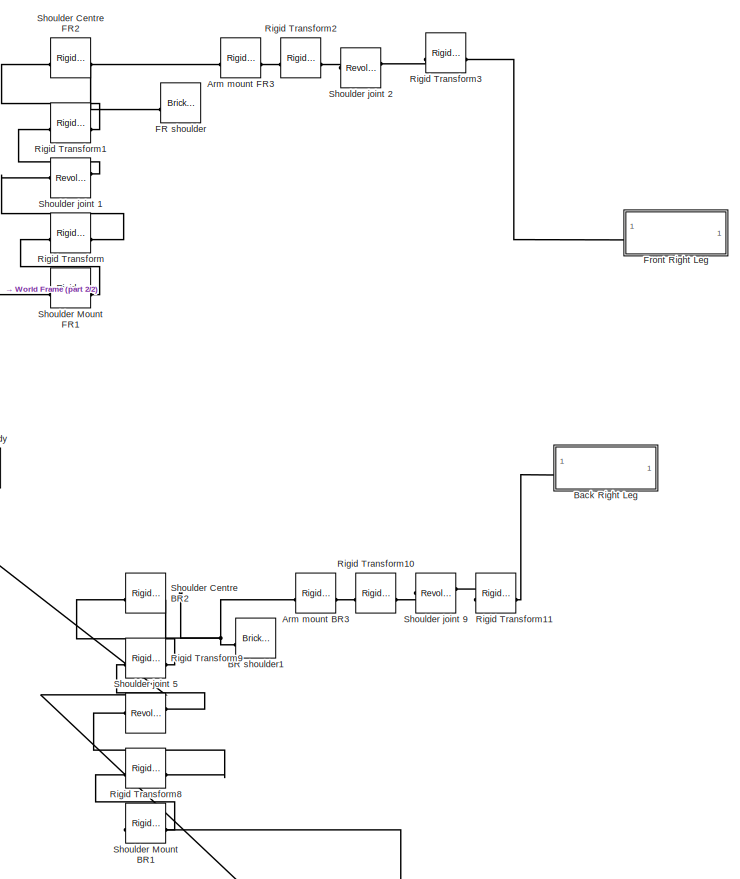
[diagram: root canvas - part 1/2, middle right region]
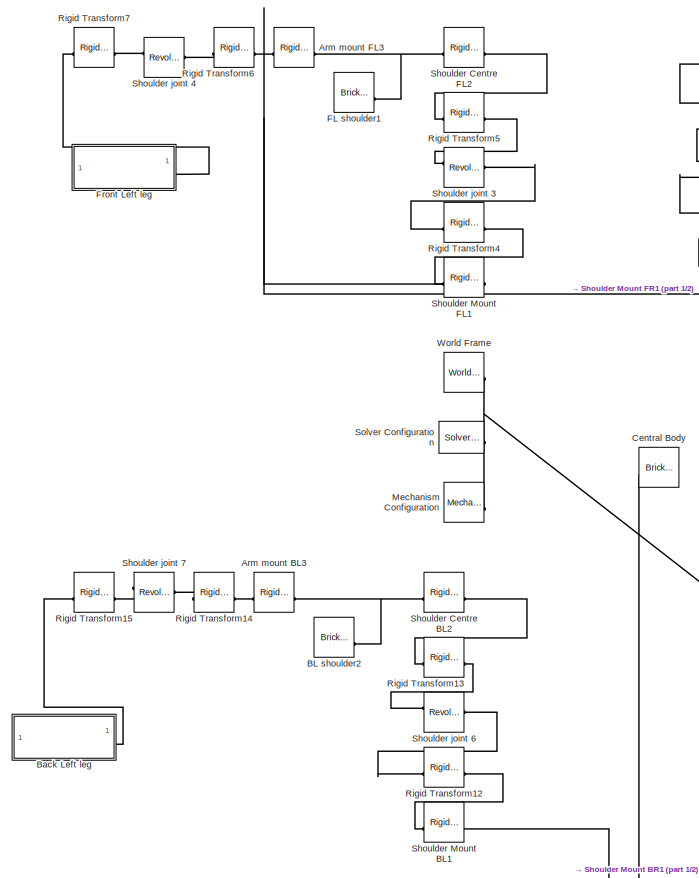
[diagram: root canvas - part 2/2, middle left region]
MODEL slx_f675138308cd
KIND model
CONFIG AbsTol = auto
CONFIG EnableMultiTasking = off
CONFIG FixedStep = auto
CONFIG MaxStep = auto
CONFIG MinStep = auto
CONFIG RelTol = 1e-3
CONFIG SampleTimeConstraint = Unconstrained
CONFIG SolverName = VariableStepAuto
CONFIG StartTime = 0.0
CONFIG StopTime = 10.0
BLOCK [Reference] Arm mount BL3  REF=sm_lib/Frames and
Transforms/Rigid
Transform
  SourceBlock = sm_lib/Frames and\nTransforms/Rigid\nTransform
  SourceType = Rigid\nTransform
BLOCK [Reference] Arm mount BR3  REF=sm_lib/Frames and
Transforms/Rigid
Transform
  SourceBlock = sm_lib/Frames and\nTransforms/Rigid\nTransform
  SourceType = Rigid\nTransform
BLOCK [Reference] Arm mount FL3  REF=sm_lib/Frames and
Transforms/Rigid
Transform
  SourceBlock = sm_lib/Frames and\nTransforms/Rigid\nTransform
  SourceType = Rigid\nTransform
BLOCK [Reference] Arm mount FR3  REF=sm_lib/Frames and
Transforms/Rigid
Transform
  SourceBlock = sm_lib/Frames and\nTransforms/Rigid\nTransform
  SourceType = Rigid\nTransform
BLOCK [Reference] BL shoulder2  REF=sm_lib/Body Elements/Brick Solid
  SourceBlock = sm_lib/Body Elements/Brick Solid
  SourceType = Brick Solid
BLOCK [Reference] BR shoulder1  REF=sm_lib/Body Elements/Brick Solid
  SourceBlock = sm_lib/Body Elements/Brick Solid
  SourceType = Brick Solid
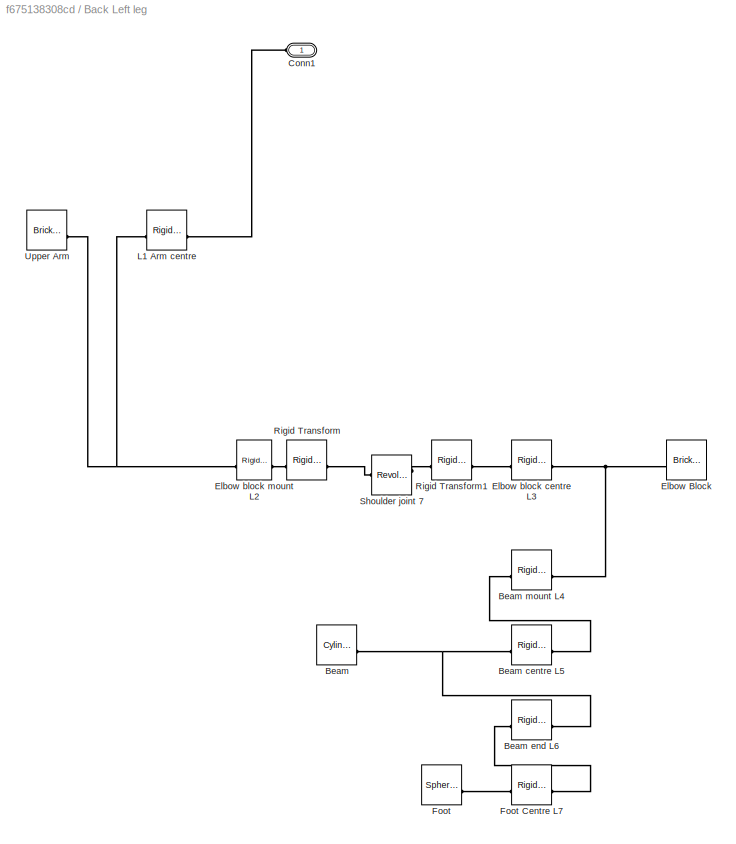
BLOCK [SubSystem] Back Left leg
BLOCK [Reference] Back Left leg/Beam  REF=sm_lib/Body Elements/Cylindrical Solid
  SourceBlock = sm_lib/Body Elements/Cylindrical Solid
  SourceType = Cylindrical Solid
BLOCK [Reference] Back Left leg/Beam centre L5  REF=sm_lib/Frames and
Transforms/Rigid
Transform
  SourceBlock = sm_lib/Frames and\nTransforms/Rigid\nTransform
  SourceType = Rigid\nTransform
BLOCK [Reference] Back Left leg/Beam end L6  REF=sm_lib/Frames and
Transforms/Rigid
Transform
  SourceBlock = sm_lib/Frames and\nTransforms/Rigid\nTransform
  SourceType = Rigid\nTransform
BLOCK [Reference] Back Left leg/Beam mount L4  REF=sm_lib/Frames and
Transforms/Rigid
Transform
  SourceBlock = sm_lib/Frames and\nTransforms/Rigid\nTransform
  SourceType = Rigid\nTransform
BLOCK [PMIOPort] Back Left leg/Conn1
  Side = Left
BLOCK [Reference] Back Left leg/Elbow Block  REF=sm_lib/Body Elements/Brick Solid
  SourceBlock = sm_lib/Body Elements/Brick Solid
  SourceType = Brick Solid
BLOCK [Reference] Back Left leg/Elbow block centre L3  REF=sm_lib/Frames and
Transforms/Rigid
Transform
  SourceBlock = sm_lib/Frames and\nTransforms/Rigid\nTransform
  SourceType = Rigid\nTransform
BLOCK [Reference] Back Left leg/Elbow block mount L2  REF=sm_lib/Frames and
Transforms/Rigid
Transform
  SourceBlock = sm_lib/Frames and\nTransforms/Rigid\nTransform
  SourceType = Rigid\nTransform
BLOCK [Reference] Back Left leg/Foot  REF=sm_lib/Body Elements/Spherical Solid
  SourceBlock = sm_lib/Body Elements/Spherical Solid
  SourceType = Spherical Solid
BLOCK [Reference] Back Left leg/Foot Centre L7  REF=sm_lib/Frames and
Transforms/Rigid
Transform
  SourceBlock = sm_lib/Frames and\nTransforms/Rigid\nTransform
  SourceType = Rigid\nTransform
BLOCK [Reference] Back Left leg/L1 Arm centre  REF=sm_lib/Frames and
Transforms/Rigid
Transform
  SourceBlock = sm_lib/Frames and\nTransforms/Rigid\nTransform
  SourceType = Rigid\nTransform
BLOCK [Reference] Back Left leg/Rigid Transform  REF=sm_lib/Frames and
Transforms/Rigid
Transform
  SourceBlock = sm_lib/Frames and\nTransforms/Rigid\nTransform
  SourceType = Rigid\nTransform
BLOCK [Reference] Back Left leg/Rigid Transform1  REF=sm_lib/Frames and
Transforms/Rigid
Transform
  SourceBlock = sm_lib/Frames and\nTransforms/Rigid\nTransform
  SourceType = Rigid\nTransform
BLOCK [Reference] Back Left leg/Shoulder joint 7  REF=sm_lib/Joints/Revolute Joint
  SourceBlock = sm_lib/Joints/Revolute Joint
  SourceType = Revolute Joint
BLOCK [Reference] Back Left leg/Upper Arm  REF=sm_lib/Body Elements/Brick Solid
  SourceBlock = sm_lib/Body Elements/Brick Solid
  SourceType = Brick Solid
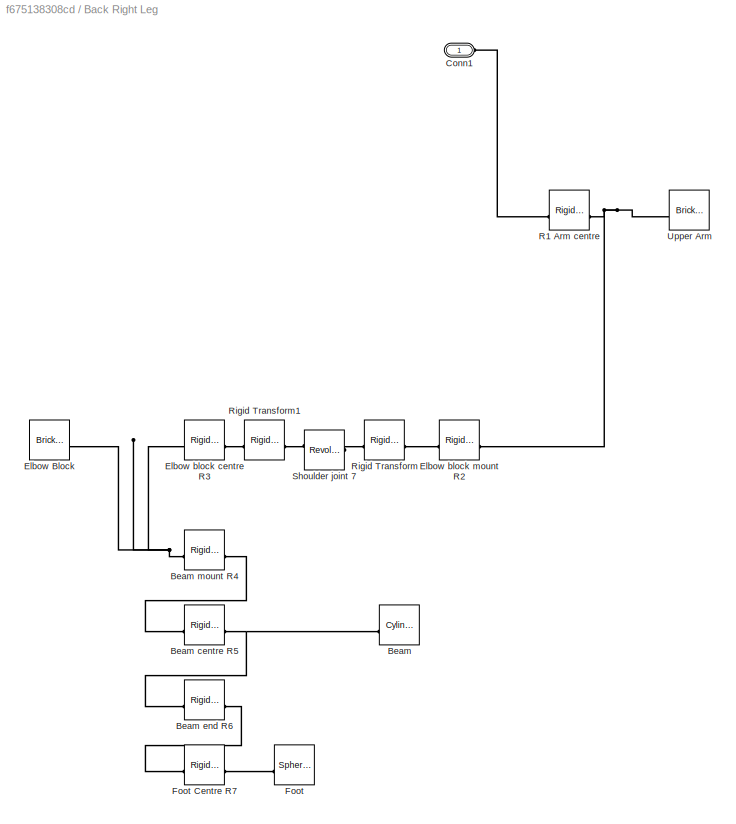
BLOCK [SubSystem] Back Right Leg
BLOCK [Reference] Back Right Leg/Beam  REF=sm_lib/Body Elements/Cylindrical Solid
  SourceBlock = sm_lib/Body Elements/Cylindrical Solid
  SourceType = Cylindrical Solid
BLOCK [Reference] Back Right Leg/Beam centre R5  REF=sm_lib/Frames and
Transforms/Rigid
Transform
  SourceBlock = sm_lib/Frames and\nTransforms/Rigid\nTransform
  SourceType = Rigid\nTransform
BLOCK [Reference] Back Right Leg/Beam end R6  REF=sm_lib/Frames and
Transforms/Rigid
Transform
  SourceBlock = sm_lib/Frames and\nTransforms/Rigid\nTransform
  SourceType = Rigid\nTransform
BLOCK [Reference] Back Right Leg/Beam mount R4  REF=sm_lib/Frames and
Transforms/Rigid
Transform
  SourceBlock = sm_lib/Frames and\nTransforms/Rigid\nTransform
  SourceType = Rigid\nTransform
BLOCK [PMIOPort] Back Right Leg/Conn1
  Side = Left
BLOCK [Reference] Back Right Leg/Elbow Block  REF=sm_lib/Body Elements/Brick Solid
  SourceBlock = sm_lib/Body Elements/Brick Solid
  SourceType = Brick Solid
BLOCK [Reference] Back Right Leg/Elbow block centre R3  REF=sm_lib/Frames and
Transforms/Rigid
Transform
  SourceBlock = sm_lib/Frames and\nTransforms/Rigid\nTransform
  SourceType = Rigid\nTransform
BLOCK [Reference] Back Right Leg/Elbow block mount R2  REF=sm_lib/Frames and
Transforms/Rigid
Transform
  SourceBlock = sm_lib/Frames and\nTransforms/Rigid\nTransform
  SourceType = Rigid\nTransform
BLOCK [Reference] Back Right Leg/Foot  REF=sm_lib/Body Elements/Spherical Solid
  SourceBlock = sm_lib/Body Elements/Spherical Solid
  SourceType = Spherical Solid
BLOCK [Reference] Back Right Leg/Foot Centre R7  REF=sm_lib/Frames and
Transforms/Rigid
Transform
  SourceBlock = sm_lib/Frames and\nTransforms/Rigid\nTransform
  SourceType = Rigid\nTransform
BLOCK [Reference] Back Right Leg/R1 Arm centre  REF=sm_lib/Frames and
Transforms/Rigid
Transform
  SourceBlock = sm_lib/Frames and\nTransforms/Rigid\nTransform
  SourceType = Rigid\nTransform
BLOCK [Reference] Back Right Leg/Rigid Transform  REF=sm_lib/Frames and
Transforms/Rigid
Transform
  SourceBlock = sm_lib/Frames and\nTransforms/Rigid\nTransform
  SourceType = Rigid\nTransform
BLOCK [Reference] Back Right Leg/Rigid Transform1  REF=sm_lib/Frames and
Transforms/Rigid
Transform
  SourceBlock = sm_lib/Frames and\nTransforms/Rigid\nTransform
  SourceType = Rigid\nTransform
BLOCK [Reference] Back Right Leg/Shoulder joint 7  REF=sm_lib/Joints/Revolute Joint
  SourceBlock = sm_lib/Joints/Revolute Joint
  SourceType = Revolute Joint
BLOCK [Reference] Back Right Leg/Upper Arm  REF=sm_lib/Body Elements/Brick Solid
  SourceBlock = sm_lib/Body Elements/Brick Solid
  SourceType = Brick Solid
BLOCK [Reference] Central Body  REF=sm_lib/Body Elements/Brick Solid
  SourceBlock = sm_lib/Body Elements/Brick Solid
  SourceType = Brick Solid
BLOCK [Reference] FL shoulder1  REF=sm_lib/Body Elements/Brick Solid
  SourceBlock = sm_lib/Body Elements/Brick Solid
  SourceType = Brick Solid
BLOCK [Reference] FR shoulder  REF=sm_lib/Body Elements/Brick Solid
  SourceBlock = sm_lib/Body Elements/Brick Solid
  SourceType = Brick Solid
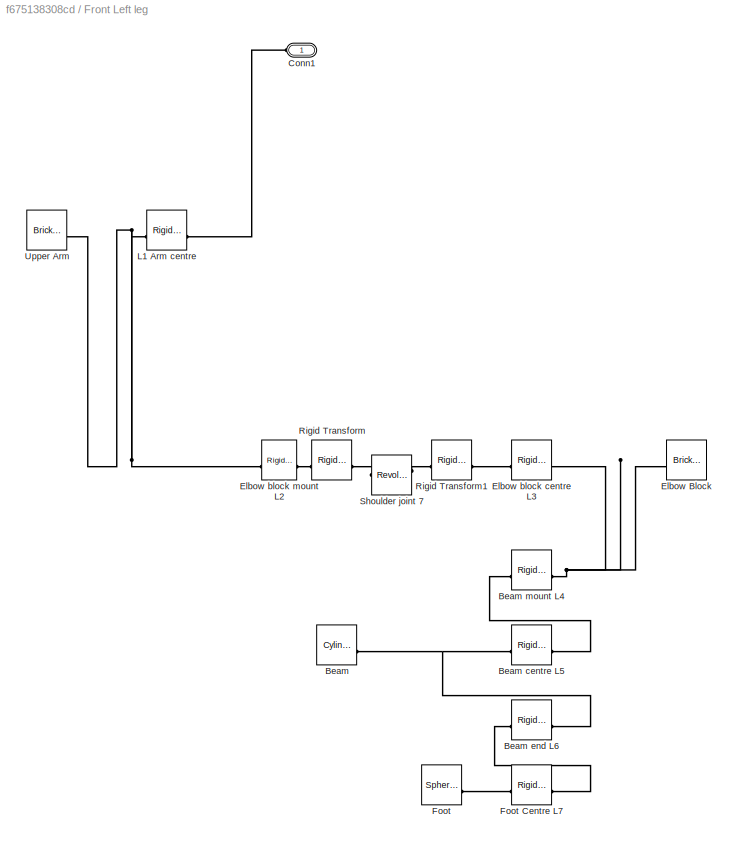
BLOCK [SubSystem] Front Left leg
BLOCK [Reference] Front Left leg/Beam  REF=sm_lib/Body Elements/Cylindrical Solid
  SourceBlock = sm_lib/Body Elements/Cylindrical Solid
  SourceType = Cylindrical Solid
BLOCK [Reference] Front Left leg/Beam centre L5  REF=sm_lib/Frames and
Transforms/Rigid
Transform
  SourceBlock = sm_lib/Frames and\nTransforms/Rigid\nTransform
  SourceType = Rigid\nTransform
BLOCK [Reference] Front Left leg/Beam end L6  REF=sm_lib/Frames and
Transforms/Rigid
Transform
  SourceBlock = sm_lib/Frames and\nTransforms/Rigid\nTransform
  SourceType = Rigid\nTransform
BLOCK [Reference] Front Left leg/Beam mount L4  REF=sm_lib/Frames and
Transforms/Rigid
Transform
  SourceBlock = sm_lib/Frames and\nTransforms/Rigid\nTransform
  SourceType = Rigid\nTransform
BLOCK [PMIOPort] Front Left leg/Conn1
  Side = Left
BLOCK [Reference] Front Left leg/Elbow Block  REF=sm_lib/Body Elements/Brick Solid
  SourceBlock = sm_lib/Body Elements/Brick Solid
  SourceType = Brick Solid
BLOCK [Reference] Front Left leg/Elbow block centre L3  REF=sm_lib/Frames and
Transforms/Rigid
Transform
  SourceBlock = sm_lib/Frames and\nTransforms/Rigid\nTransform
  SourceType = Rigid\nTransform
BLOCK [Reference] Front Left leg/Elbow block mount L2  REF=sm_lib/Frames and
Transforms/Rigid
Transform
  SourceBlock = sm_lib/Frames and\nTransforms/Rigid\nTransform
  SourceType = Rigid\nTransform
BLOCK [Reference] Front Left leg/Foot  REF=sm_lib/Body Elements/Spherical Solid
  SourceBlock = sm_lib/Body Elements/Spherical Solid
  SourceType = Spherical Solid
BLOCK [Reference] Front Left leg/Foot Centre L7  REF=sm_lib/Frames and
Transforms/Rigid
Transform
  SourceBlock = sm_lib/Frames and\nTransforms/Rigid\nTransform
  SourceType = Rigid\nTransform
BLOCK [Reference] Front Left leg/L1 Arm centre  REF=sm_lib/Frames and
Transforms/Rigid
Transform
  SourceBlock = sm_lib/Frames and\nTransforms/Rigid\nTransform
  SourceType = Rigid\nTransform
BLOCK [Reference] Front Left leg/Rigid Transform  REF=sm_lib/Frames and
Transforms/Rigid
Transform
  SourceBlock = sm_lib/Frames and\nTransforms/Rigid\nTransform
  SourceType = Rigid\nTransform
BLOCK [Reference] Front Left leg/Rigid Transform1  REF=sm_lib/Frames and
Transforms/Rigid
Transform
  SourceBlock = sm_lib/Frames and\nTransforms/Rigid\nTransform
  SourceType = Rigid\nTransform
BLOCK [Reference] Front Left leg/Shoulder joint 7  REF=sm_lib/Joints/Revolute Joint
  SourceBlock = sm_lib/Joints/Revolute Joint
  SourceType = Revolute Joint
BLOCK [Reference] Front Left leg/Upper Arm  REF=sm_lib/Body Elements/Brick Solid
  SourceBlock = sm_lib/Body Elements/Brick Solid
  SourceType = Brick Solid
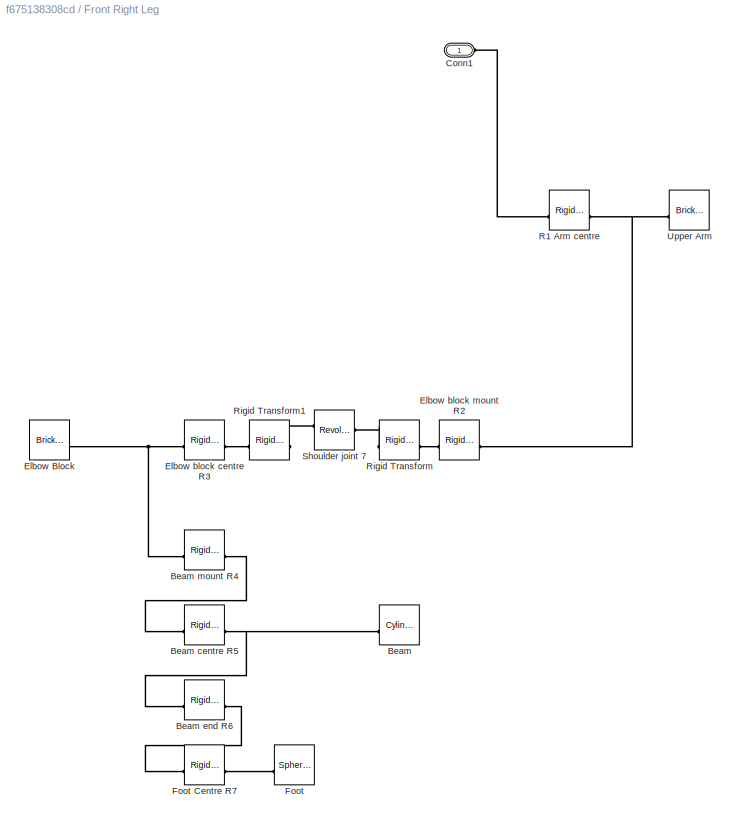
BLOCK [SubSystem] Front Right Leg
BLOCK [Reference] Front Right Leg/Beam  REF=sm_lib/Body Elements/Cylindrical Solid
  SourceBlock = sm_lib/Body Elements/Cylindrical Solid
  SourceType = Cylindrical Solid
BLOCK [Reference] Front Right Leg/Beam centre R5  REF=sm_lib/Frames and
Transforms/Rigid
Transform
  SourceBlock = sm_lib/Frames and\nTransforms/Rigid\nTransform
  SourceType = Rigid\nTransform
BLOCK [Reference] Front Right Leg/Beam end R6  REF=sm_lib/Frames and
Transforms/Rigid
Transform
  SourceBlock = sm_lib/Frames and\nTransforms/Rigid\nTransform
  SourceType = Rigid\nTransform
BLOCK [Reference] Front Right Leg/Beam mount R4  REF=sm_lib/Frames and
Transforms/Rigid
Transform
  SourceBlock = sm_lib/Frames and\nTransforms/Rigid\nTransform
  SourceType = Rigid\nTransform
BLOCK [PMIOPort] Front Right Leg/Conn1
  Side = Left
BLOCK [Reference] Front Right Leg/Elbow Block  REF=sm_lib/Body Elements/Brick Solid
  SourceBlock = sm_lib/Body Elements/Brick Solid
  SourceType = Brick Solid
BLOCK [Reference] Front Right Leg/Elbow block centre R3  REF=sm_lib/Frames and
Transforms/Rigid
Transform
  SourceBlock = sm_lib/Frames and\nTransforms/Rigid\nTransform
  SourceType = Rigid\nTransform
BLOCK [Reference] Front Right Leg/Elbow block mount R2  REF=sm_lib/Frames and
Transforms/Rigid
Transform
  SourceBlock = sm_lib/Frames and\nTransforms/Rigid\nTransform
  SourceType = Rigid\nTransform
BLOCK [Reference] Front Right Leg/Foot  REF=sm_lib/Body Elements/Spherical Solid
  SourceBlock = sm_lib/Body Elements/Spherical Solid
  SourceType = Spherical Solid
BLOCK [Reference] Front Right Leg/Foot Centre R7  REF=sm_lib/Frames and
Transforms/Rigid
Transform
  SourceBlock = sm_lib/Frames and\nTransforms/Rigid\nTransform
  SourceType = Rigid\nTransform
BLOCK [Reference] Front Right Leg/R1 Arm centre  REF=sm_lib/Frames and
Transforms/Rigid
Transform
  SourceBlock = sm_lib/Frames and\nTransforms/Rigid\nTransform
  SourceType = Rigid\nTransform
BLOCK [Reference] Front Right Leg/Rigid Transform  REF=sm_lib/Frames and
Transforms/Rigid
Transform
  SourceBlock = sm_lib/Frames and\nTransforms/Rigid\nTransform
  SourceType = Rigid\nTransform
BLOCK [Reference] Front Right Leg/Rigid Transform1  REF=sm_lib/Frames and
Transforms/Rigid
Transform
  SourceBlock = sm_lib/Frames and\nTransforms/Rigid\nTransform
  SourceType = Rigid\nTransform
BLOCK [Reference] Front Right Leg/Shoulder joint 7  REF=sm_lib/Joints/Revolute Joint
  SourceBlock = sm_lib/Joints/Revolute Joint
  SourceType = Revolute Joint
BLOCK [Reference] Front Right Leg/Upper Arm  REF=sm_lib/Body Elements/Brick Solid
  SourceBlock = sm_lib/Body Elements/Brick Solid
  SourceType = Brick Solid
BLOCK [Reference] Mechanism Configuration  REF=sm_lib/Utilities/Mechanism
Configuration
  SourceBlock = sm_lib/Utilities/Mechanism\nConfiguration
  SourceType = Mechanism\nConfiguration
BLOCK [Reference] Rigid Transform  REF=sm_lib/Frames and
Transforms/Rigid
Transform
  SourceBlock = sm_lib/Frames and\nTransforms/Rigid\nTransform
  SourceType = Rigid\nTransform
BLOCK [Reference] Rigid Transform1  REF=sm_lib/Frames and
Transforms/Rigid
Transform
  SourceBlock = sm_lib/Frames and\nTransforms/Rigid\nTransform
  SourceType = Rigid\nTransform
BLOCK [Reference] Rigid Transform10  REF=sm_lib/Frames and
Transforms/Rigid
Transform
  SourceBlock = sm_lib/Frames and\nTransforms/Rigid\nTransform
  SourceType = Rigid\nTransform
BLOCK [Reference] Rigid Transform11  REF=sm_lib/Frames and
Transforms/Rigid
Transform
  SourceBlock = sm_lib/Frames and\nTransforms/Rigid\nTransform
  SourceType = Rigid\nTransform
BLOCK [Reference] Rigid Transform12  REF=sm_lib/Frames and
Transforms/Rigid
Transform
  SourceBlock = sm_lib/Frames and\nTransforms/Rigid\nTransform
  SourceType = Rigid\nTransform
BLOCK [Reference] Rigid Transform13  REF=sm_lib/Frames and
Transforms/Rigid
Transform
  SourceBlock = sm_lib/Frames and\nTransforms/Rigid\nTransform
  SourceType = Rigid\nTransform
BLOCK [Reference] Rigid Transform14  REF=sm_lib/Frames and
Transforms/Rigid
Transform
  SourceBlock = sm_lib/Frames and\nTransforms/Rigid\nTransform
  SourceType = Rigid\nTransform
BLOCK [Reference] Rigid Transform15  REF=sm_lib/Frames and
Transforms/Rigid
Transform
  SourceBlock = sm_lib/Frames and\nTransforms/Rigid\nTransform
  SourceType = Rigid\nTransform
BLOCK [Reference] Rigid Transform2  REF=sm_lib/Frames and
Transforms/Rigid
Transform
  SourceBlock = sm_lib/Frames and\nTransforms/Rigid\nTransform
  SourceType = Rigid\nTransform
BLOCK [Reference] Rigid Transform3  REF=sm_lib/Frames and
Transforms/Rigid
Transform
  SourceBlock = sm_lib/Frames and\nTransforms/Rigid\nTransform
  SourceType = Rigid\nTransform
BLOCK [Reference] Rigid Transform4  REF=sm_lib/Frames and
Transforms/Rigid
Transform
  SourceBlock = sm_lib/Frames and\nTransforms/Rigid\nTransform
  SourceType = Rigid\nTransform
BLOCK [Reference] Rigid Transform5  REF=sm_lib/Frames and
Transforms/Rigid
Transform
  SourceBlock = sm_lib/Frames and\nTransforms/Rigid\nTransform
  SourceType = Rigid\nTransform
BLOCK [Reference] Rigid Transform6  REF=sm_lib/Frames and
Transforms/Rigid
Transform
  SourceBlock = sm_lib/Frames and\nTransforms/Rigid\nTransform
  SourceType = Rigid\nTransform
BLOCK [Reference] Rigid Transform7  REF=sm_lib/Frames and
Transforms/Rigid
Transform
  SourceBlock = sm_lib/Frames and\nTransforms/Rigid\nTransform
  SourceType = Rigid\nTransform
BLOCK [Reference] Rigid Transform8  REF=sm_lib/Frames and
Transforms/Rigid
Transform
  SourceBlock = sm_lib/Frames and\nTransforms/Rigid\nTransform
  SourceType = Rigid\nTransform
BLOCK [Reference] Rigid Transform9  REF=sm_lib/Frames and
Transforms/Rigid
Transform
  SourceBlock = sm_lib/Frames and\nTransforms/Rigid\nTransform
  SourceType = Rigid\nTransform
BLOCK [Reference] Shoulder Centre BL2  REF=sm_lib/Frames and
Transforms/Rigid
Transform
  SourceBlock = sm_lib/Frames and\nTransforms/Rigid\nTransform
  SourceType = Rigid\nTransform
BLOCK [Reference] Shoulder Centre BR2  REF=sm_lib/Frames and
Transforms/Rigid
Transform
  SourceBlock = sm_lib/Frames and\nTransforms/Rigid\nTransform
  SourceType = Rigid\nTransform
BLOCK [Reference] Shoulder Centre FL2  REF=sm_lib/Frames and
Transforms/Rigid
Transform
  SourceBlock = sm_lib/Frames and\nTransforms/Rigid\nTransform
  SourceType = Rigid\nTransform
BLOCK [Reference] Shoulder Centre FR2  REF=sm_lib/Frames and
Transforms/Rigid
Transform
  SourceBlock = sm_lib/Frames and\nTransforms/Rigid\nTransform
  SourceType = Rigid\nTransform
BLOCK [Reference] Shoulder Mount BL1  REF=sm_lib/Frames and
Transforms/Rigid
Transform
  SourceBlock = sm_lib/Frames and\nTransforms/Rigid\nTransform
  SourceType = Rigid\nTransform
BLOCK [Reference] Shoulder Mount BR1  REF=sm_lib/Frames and
Transforms/Rigid
Transform
  SourceBlock = sm_lib/Frames and\nTransforms/Rigid\nTransform
  SourceType = Rigid\nTransform
BLOCK [Reference] Shoulder Mount FL1  REF=sm_lib/Frames and
Transforms/Rigid
Transform
  SourceBlock = sm_lib/Frames and\nTransforms/Rigid\nTransform
  SourceType = Rigid\nTransform
BLOCK [Reference] Shoulder Mount FR1  REF=sm_lib/Frames and
Transforms/Rigid
Transform
  SourceBlock = sm_lib/Frames and\nTransforms/Rigid\nTransform
  SourceType = Rigid\nTransform
BLOCK [Reference] Shoulder joint 1  REF=sm_lib/Joints/Revolute Joint
  SourceBlock = sm_lib/Joints/Revolute Joint
  SourceType = Revolute Joint
BLOCK [Reference] Shoulder joint 2  REF=sm_lib/Joints/Revolute Joint
  SourceBlock = sm_lib/Joints/Revolute Joint
  SourceType = Revolute Joint
BLOCK [Reference] Shoulder joint 3  REF=sm_lib/Joints/Revolute Joint
  SourceBlock = sm_lib/Joints/Revolute Joint
  SourceType = Revolute Joint
BLOCK [Reference] Shoulder joint 4  REF=sm_lib/Joints/Revolute Joint
  SourceBlock = sm_lib/Joints/Revolute Joint
  SourceType = Revolute Joint
BLOCK [Reference] Shoulder joint 5  REF=sm_lib/Joints/Revolute Joint
  SourceBlock = sm_lib/Joints/Revolute Joint
  SourceType = Revolute Joint
BLOCK [Reference] Shoulder joint 6  REF=sm_lib/Joints/Revolute Joint
  SourceBlock = sm_lib/Joints/Revolute Joint
  SourceType = Revolute Joint
BLOCK [Reference] Shoulder joint 7  REF=sm_lib/Joints/Revolute Joint
  SourceBlock = sm_lib/Joints/Revolute Joint
  SourceType = Revolute Joint
BLOCK [Reference] Shoulder joint 9  REF=sm_lib/Joints/Revolute Joint
  SourceBlock = sm_lib/Joints/Revolute Joint
  SourceType = Revolute Joint
BLOCK [Reference] Solver Configuration  REF=nesl_utility/Solver
Configuration
  SourceBlock = nesl_utility/Solver\nConfiguration
  SourceType = Solver\nConfiguration
BLOCK [Reference] World Frame  REF=sm_lib/Frames and
Transforms/World Frame
  SourceBlock = sm_lib/Frames and\nTransforms/World Frame
  SourceType = World Frame
PNET net1: Arm mount BL3:LConn1 -- BL shoulder2:RConn1 -- Shoulder Centre BL2:RConn1
PLINE Arm mount BL3:RConn1 -- Rigid Transform14:LConn1
PNET net2: Arm mount BR3:LConn1 -- BR shoulder1:RConn1 -- Shoulder Centre BR2:RConn1
PLINE Arm mount BR3:RConn1 -- Rigid Transform10:LConn1
PNET net3: Arm mount FL3:LConn1 -- FL shoulder1:RConn1 -- Shoulder Centre FL2:RConn1
PLINE Arm mount FL3:RConn1 -- Rigid Transform6:LConn1
PNET net4: Arm mount FR3:LConn1 -- FR shoulder:RConn1 -- Shoulder Centre FR2:RConn1
PLINE Arm mount FR3:RConn1 -- Rigid Transform2:LConn1
PLINE Back Left leg/Beam centre L5:LConn1 -- Back Left leg/Beam mount L4:RConn1
PNET net5: Back Left leg/Beam centre L5:RConn1 -- Back Left leg/Beam end L6:LConn1 -- Back Left leg/Beam:RConn1
PLINE Back Left leg/Beam end L6:RConn1 -- Back Left leg/Foot Centre L7:LConn1
PNET net6: Back Left leg/Beam mount L4:LConn1 -- Back Left leg/Elbow Block:RConn1 -- Back Left leg/Elbow block centre L3:RConn1
PLINE Back Left leg/Conn1:RConn1 -- Back Left leg/L1 Arm centre:LConn1
PLINE Back Left leg/Elbow block centre L3:LConn1 -- Back Left leg/Rigid Transform1:RConn1
PNET net7: Back Left leg/Elbow block mount L2:LConn1 -- Back Left leg/L1 Arm centre:RConn1 -- Back Left leg/Upper Arm:RConn1
PLINE Back Left leg/Elbow block mount L2:RConn1 -- Back Left leg/Rigid Transform:LConn1
PLINE Back Left leg/Foot Centre L7:RConn1 -- Back Left leg/Foot:RConn1
PLINE Back Left leg/Rigid Transform1:LConn1 -- Back Left leg/Shoulder joint 7:RConn1
PLINE Back Left leg/Rigid Transform:RConn1 -- Back Left leg/Shoulder joint 7:LConn1
PLINE Back Left leg:LConn1 -- Rigid Transform15:RConn1
PLINE Back Right Leg/Beam centre R5:LConn1 -- Back Right Leg/Beam mount R4:RConn1
PNET net8: Back Right Leg/Beam centre R5:RConn1 -- Back Right Leg/Beam end R6:LConn1 -- Back Right Leg/Beam:RConn1
PLINE Back Right Leg/Beam end R6:RConn1 -- Back Right Leg/Foot Centre R7:LConn1
PNET net9: Back Right Leg/Beam mount R4:LConn1 -- Back Right Leg/Elbow Block:RConn1 -- Back Right Leg/Elbow block centre R3:RConn1
PLINE Back Right Leg/Conn1:RConn1 -- Back Right Leg/R1 Arm centre:LConn1
PLINE Back Right Leg/Elbow block centre R3:LConn1 -- Back Right Leg/Rigid Transform1:RConn1
PNET net10: Back Right Leg/Elbow block mount R2:LConn1 -- Back Right Leg/R1 Arm centre:RConn1 -- Back Right Leg/Upper Arm:RConn1
PLINE Back Right Leg/Elbow block mount R2:RConn1 -- Back Right Leg/Rigid Transform:LConn1
PLINE Back Right Leg/Foot Centre R7:RConn1 -- Back Right Leg/Foot:RConn1
PLINE Back Right Leg/Rigid Transform1:LConn1 -- Back Right Leg/Shoulder joint 7:RConn1
PLINE Back Right Leg/Rigid Transform:RConn1 -- Back Right Leg/Shoulder joint 7:LConn1
PLINE Back Right Leg:LConn1 -- Rigid Transform11:RConn1
PNET net11: Central Body:RConn1 -- Mechanism Configuration:RConn1 -- Shoulder Mount BL1:LConn1 -- Shoulder Mount BR1:LConn1 -- Shoulder Mount FL1:LConn1 -- Shoulder Mount FR1:LConn1 -- Solver Configuration:RConn1 -- World Frame:RConn1
PLINE Front Left leg/Beam centre L5:LConn1 -- Front Left leg/Beam mount L4:RConn1
PNET net12: Front Left leg/Beam centre L5:RConn1 -- Front Left leg/Beam end L6:LConn1 -- Front Left leg/Beam:RConn1
PLINE Front Left leg/Beam end L6:RConn1 -- Front Left leg/Foot Centre L7:LConn1
PNET net13: Front Left leg/Beam mount L4:LConn1 -- Front Left leg/Elbow Block:RConn1 -- Front Left leg/Elbow block centre L3:RConn1
PLINE Front Left leg/Conn1:RConn1 -- Front Left leg/L1 Arm centre:LConn1
PLINE Front Left leg/Elbow block centre L3:LConn1 -- Front Left leg/Rigid Transform1:RConn1
PNET net14: Front Left leg/Elbow block mount L2:LConn1 -- Front Left leg/L1 Arm centre:RConn1 -- Front Left leg/Upper Arm:RConn1
PLINE Front Left leg/Elbow block mount L2:RConn1 -- Front Left leg/Rigid Transform:LConn1
PLINE Front Left leg/Foot Centre L7:RConn1 -- Front Left leg/Foot:RConn1
PLINE Front Left leg/Rigid Transform1:LConn1 -- Front Left leg/Shoulder joint 7:RConn1
PLINE Front Left leg/Rigid Transform:RConn1 -- Front Left leg/Shoulder joint 7:LConn1
PLINE Front Left leg:LConn1 -- Rigid Transform7:RConn1
PLINE Front Right Leg/Beam centre R5:LConn1 -- Front Right Leg/Beam mount R4:RConn1
PNET net15: Front Right Leg/Beam centre R5:RConn1 -- Front Right Leg/Beam end R6:LConn1 -- Front Right Leg/Beam:RConn1
PLINE Front Right Leg/Beam end R6:RConn1 -- Front Right Leg/Foot Centre R7:LConn1
PNET net16: Front Right Leg/Beam mount R4:LConn1 -- Front Right Leg/Elbow Block:RConn1 -- Front Right Leg/Elbow block centre R3:RConn1
PLINE Front Right Leg/Conn1:RConn1 -- Front Right Leg/R1 Arm centre:LConn1
PLINE Front Right Leg/Elbow block centre R3:LConn1 -- Front Right Leg/Rigid Transform1:RConn1
PNET net17: Front Right Leg/Elbow block mount R2:LConn1 -- Front Right Leg/R1 Arm centre:RConn1 -- Front Right Leg/Upper Arm:RConn1
PLINE Front Right Leg/Elbow block mount R2:RConn1 -- Front Right Leg/Rigid Transform:LConn1
PLINE Front Right Leg/Foot Centre R7:RConn1 -- Front Right Leg/Foot:RConn1
PLINE Front Right Leg/Rigid Transform1:LConn1 -- Front Right Leg/Shoulder joint 7:RConn1
PLINE Front Right Leg/Rigid Transform:RConn1 -- Front Right Leg/Shoulder joint 7:LConn1
PLINE Front Right Leg:LConn1 -- Rigid Transform3:RConn1
PLINE Rigid Transform10:RConn1 -- Shoulder joint 9:LConn1
PLINE Rigid Transform11:LConn1 -- Shoulder joint 9:RConn1
PLINE Rigid Transform12:LConn1 -- Shoulder Mount BL1:RConn1
PLINE Rigid Transform12:RConn1 -- Shoulder joint 6:LConn1
PLINE Rigid Transform13:LConn1 -- Shoulder joint 6:RConn1
PLINE Rigid Transform13:RConn1 -- Shoulder Centre BL2:LConn1
PLINE Rigid Transform14:RConn1 -- Shoulder joint 7:LConn1
PLINE Rigid Transform15:LConn1 -- Shoulder joint 7:RConn1
PLINE Rigid Transform1:LConn1 -- Shoulder joint 1:RConn1
PLINE Rigid Transform1:RConn1 -- Shoulder Centre FR2:LConn1
PLINE Rigid Transform2:RConn1 -- Shoulder joint 2:LConn1
PLINE Rigid Transform3:LConn1 -- Shoulder joint 2:RConn1
PLINE Rigid Transform4:LConn1 -- Shoulder Mount FL1:RConn1
PLINE Rigid Transform4:RConn1 -- Shoulder joint 3:LConn1
PLINE Rigid Transform5:LConn1 -- Shoulder joint 3:RConn1
PLINE Rigid Transform5:RConn1 -- Shoulder Centre FL2:LConn1
PLINE Rigid Transform6:RConn1 -- Shoulder joint 4:LConn1
PLINE Rigid Transform7:LConn1 -- Shoulder joint 4:RConn1
PLINE Rigid Transform8:LConn1 -- Shoulder Mount BR1:RConn1
PLINE Rigid Transform8:RConn1 -- Shoulder joint 5:LConn1
PLINE Rigid Transform9:LConn1 -- Shoulder joint 5:RConn1
PLINE Rigid Transform9:RConn1 -- Shoulder Centre BR2:LConn1
PLINE Rigid Transform:LConn1 -- Shoulder Mount FR1:RConn1
PLINE Rigid Transform:RConn1 -- Shoulder joint 1:LConn1
note: PNET lines group multi-terminal physical nets as a canonical sorted terminal list (undirected conserving connections); 2-terminal nets keep the pairwise PLINE form
